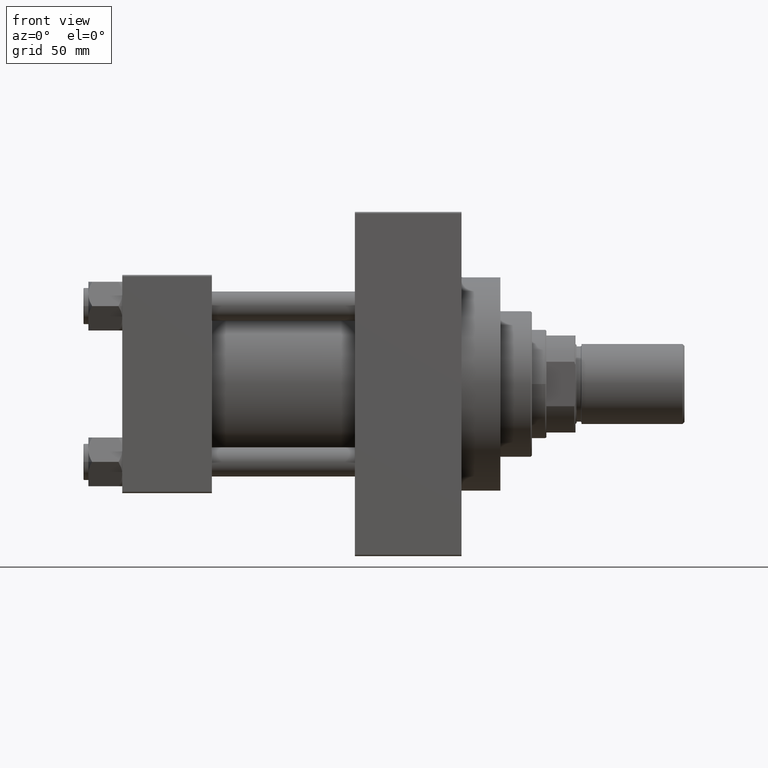
[diagram: clean part render]
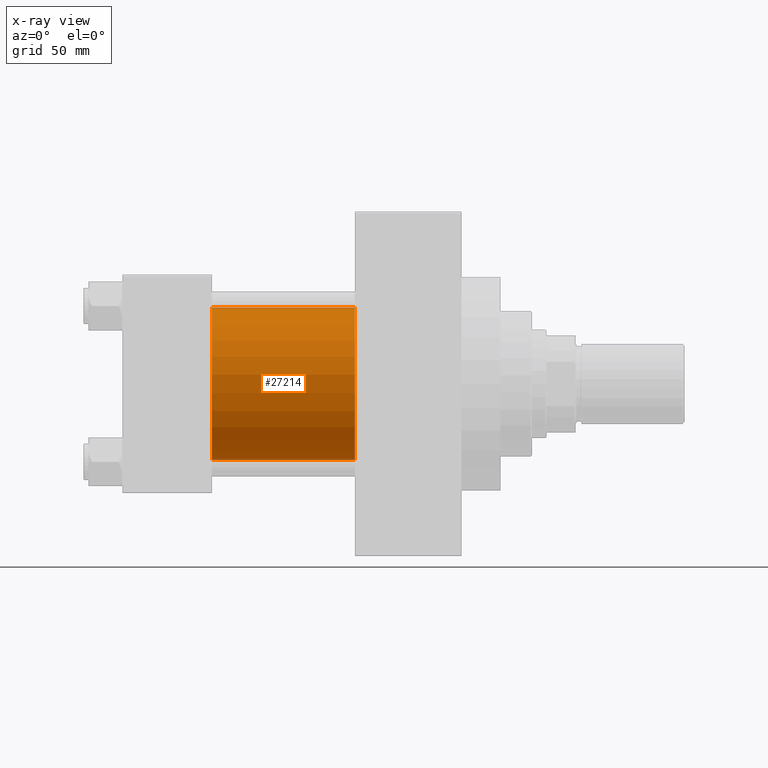
[diagram: x-ray — body ghosted, one internal face saturated and labeled with its STEP entity id]
A machine part, front view, then the same camera in x-ray: the body is ghosted and one INTERNAL B-rep face — a face not visible from any outside direction — is saturated and labeled: STEP entity #27214.
In plain terms, the highlighted cylindrical surface (partial cylindrical patch) has radius 31.5 mm, axis along (-1, -0, -0).
Its self-contained STEP definition (entity closure, byte-faithful):
#777 = CARTESIAN_POINT ( 'NONE',  ( 96.00000000000000000, 1.255552203348951850E-15, -31.50000000000000000 ) ) ;
#2856 = VECTOR ( 'NONE', #30949, 1000.000000000000000 ) ;
#4800 = CIRCLE ( 'NONE', #46521, 31.50000000000000000 ) ;
#7464 = VECTOR ( 'NONE', #46932, 1000.000000000000000 ) ;
#7859 = CARTESIAN_POINT ( 'NONE',  ( 37.00000000000000000, -2.602085213965210642E-15, 31.50000000000000000 ) ) ;
#7906 = CIRCLE ( 'NONE', #48040, 31.50000000000000000 ) ;
#9726 = CARTESIAN_POINT ( 'NONE',  ( 37.00000000000000000, 1.255552203348951850E-15, -31.50000000000000000 ) ) ;
#10512 = DIRECTION ( 'NONE',  ( 0.000000000000000000, 0.000000000000000000, -1.000000000000000000 ) ) ;
#12225 = ORIENTED_EDGE ( 'NONE', *, *, #16778, .F. ) ;
#13536 = CARTESIAN_POINT ( 'NONE',  ( 96.00000000000000000, -2.602085213965210642E-15, 0.000000000000000000 ) ) ;
#13567 = FACE_OUTER_BOUND ( 'NONE', #16795, .T. ) ;
#14133 = AXIS2_PLACEMENT_3D ( 'NONE', #47481, #43459, #21352 ) ;
#14640 = EDGE_CURVE ( 'NONE', #23214, #49510, #7906, .T. ) ;
#16778 = EDGE_CURVE ( 'NONE', #44798, #23214, #20804, .T. ) ;
#16795 = EDGE_LOOP ( 'NONE', ( #24709, #44907, #35893, #12225 ) ) ;
#17290 = DIRECTION ( 'NONE',  ( 1.000000000000000000, 0.000000000000000000, 0.000000000000000000 ) ) ;
#17433 = DIRECTION ( 'NONE',  ( 0.000000000000000000, 0.000000000000000000, -1.000000000000000000 ) ) ;
#19163 = LINE ( 'NONE', #777, #2856 ) ;
#20804 = LINE ( 'NONE', #31346, #7464 ) ;
#21352 = DIRECTION ( 'NONE',  ( 0.000000000000000000, 0.000000000000000000, 1.000000000000000000 ) ) ;
#21666 = VERTEX_POINT ( 'NONE', #30812 ) ;
#23214 = VERTEX_POINT ( 'NONE', #7859 ) ;
#23223 = EDGE_CURVE ( 'NONE', #21666, #49510, #19163, .T. ) ;
#24709 = ORIENTED_EDGE ( 'NONE', *, *, #35265, .T. ) ;
#25715 = CARTESIAN_POINT ( 'NONE',  ( 37.00000000000000000, -2.602085213965210642E-15, 0.000000000000000000 ) ) ;
#27214 = ADVANCED_FACE ( 'NONE', ( #13567 ), #28137, .F. ) ;
#28137 = CYLINDRICAL_SURFACE ( 'NONE', #14133, 31.50000000000000000 ) ;
#28493 = DIRECTION ( 'NONE',  ( 1.000000000000000000, 0.000000000000000000, 0.000000000000000000 ) ) ;
#30812 = CARTESIAN_POINT ( 'NONE',  ( 96.00000000000000000, 1.255552203348951850E-15, -31.50000000000000000 ) ) ;
#30949 = DIRECTION ( 'NONE',  ( -1.000000000000000000, -0.000000000000000000, -0.000000000000000000 ) ) ;
#31346 = CARTESIAN_POINT ( 'NONE',  ( 96.00000000000000000, -2.602085213965210642E-15, 31.50000000000000000 ) ) ;
#35265 = EDGE_CURVE ( 'NONE', #44798, #21666, #4800, .T. ) ;
#35893 = ORIENTED_EDGE ( 'NONE', *, *, #14640, .F. ) ;
#43459 = DIRECTION ( 'NONE',  ( -1.000000000000000000, -0.000000000000000000, -0.000000000000000000 ) ) ;
#44798 = VERTEX_POINT ( 'NONE', #46037 ) ;
#44907 = ORIENTED_EDGE ( 'NONE', *, *, #23223, .T. ) ;
#46037 = CARTESIAN_POINT ( 'NONE',  ( 96.00000000000000000, -2.602085213965210642E-15, 31.50000000000000000 ) ) ;
#46521 = AXIS2_PLACEMENT_3D ( 'NONE', #13536, #17290, #10512 ) ;
#46932 = DIRECTION ( 'NONE',  ( -1.000000000000000000, -0.000000000000000000, -0.000000000000000000 ) ) ;
#47481 = CARTESIAN_POINT ( 'NONE',  ( 96.00000000000000000, -2.602085213965210642E-15, 0.000000000000000000 ) ) ;
#48040 = AXIS2_PLACEMENT_3D ( 'NONE', #25715, #28493, #17433 ) ;
#49510 = VERTEX_POINT ( 'NONE', #9726 ) ;